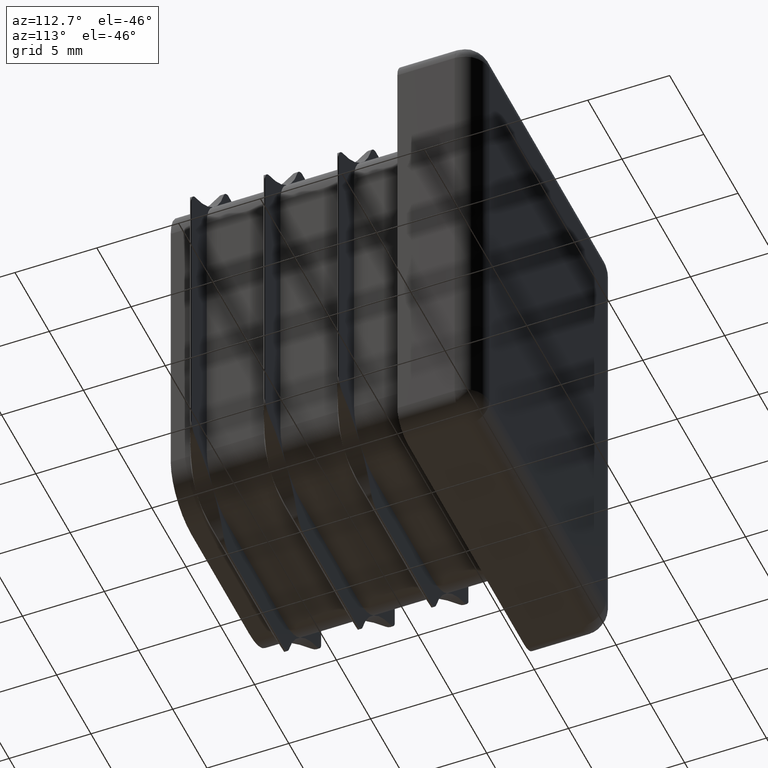
[diagram: clean part render]
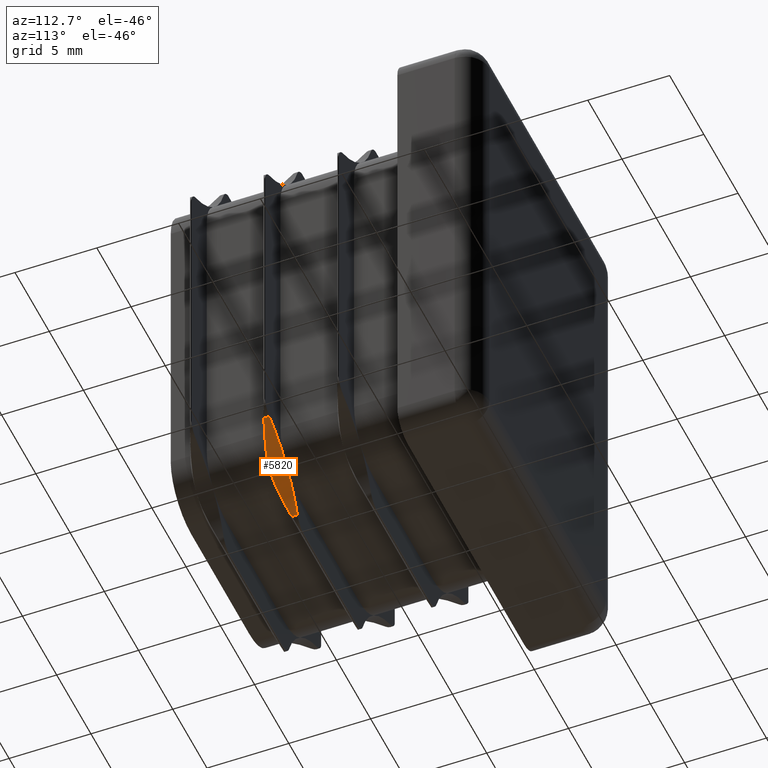
[diagram: same view with one face highlighted and labeled with its STEP entity id]
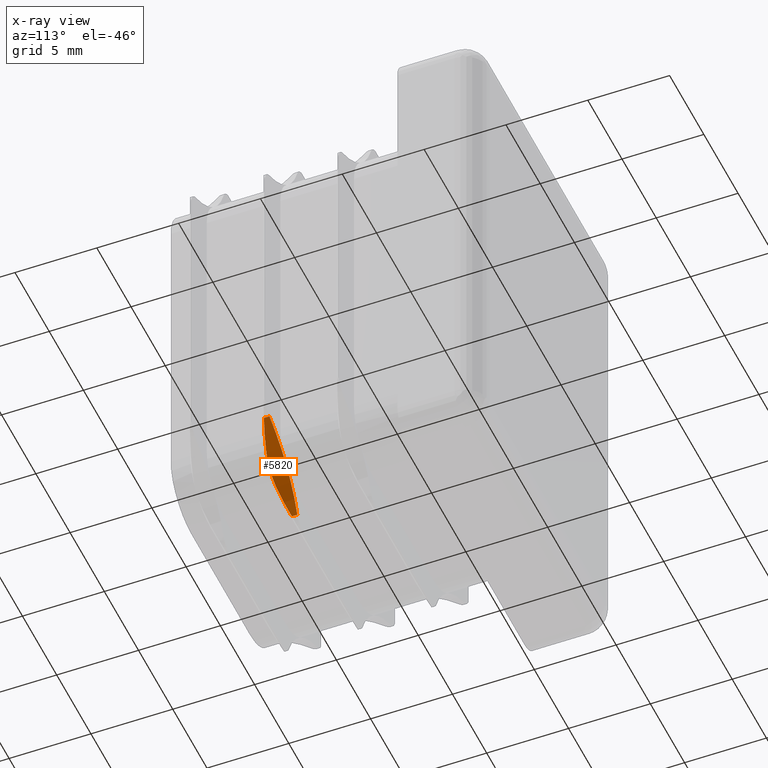
[diagram: x-ray of the same camera — body ghosted, the highlighted face saturated]
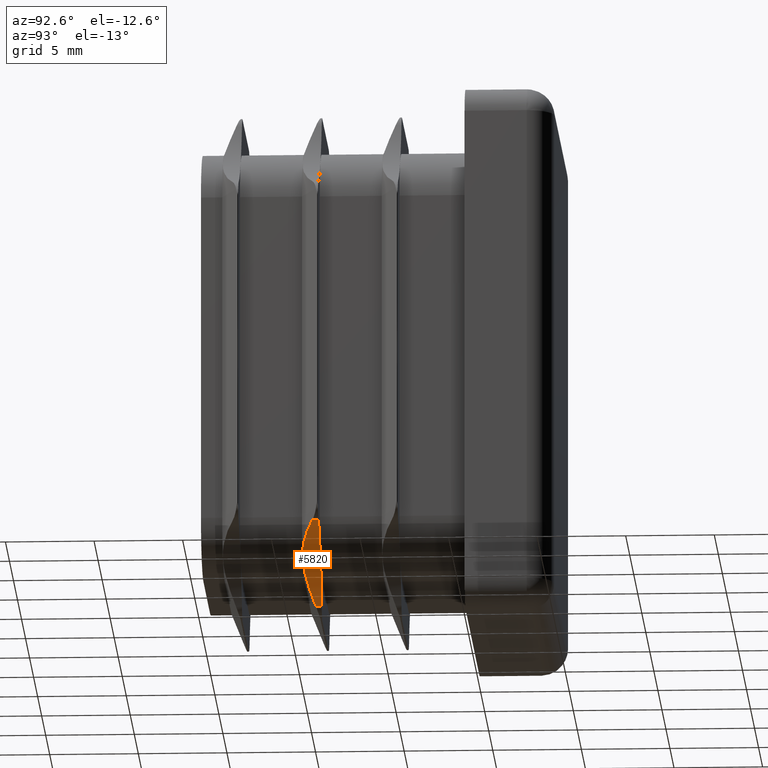
[diagram: same view with one face highlighted and labeled with its STEP entity id]
A machine part, auxiliary view. The second image highlights one B-rep face of the part: STEP entity #5820.
The next image is the same camera in x-ray: the body ghosted, the highlighted face saturated — about 0% of this face is hidden behind the body in this view.
A second angle (auxiliary view) of the same face is appended — the face is thin or edge-on in the first view.
In plain terms, the highlighted cylindrical surface (partial cylindrical patch) has radius 7 mm, axis along (-0, -1, -0).
Its self-contained STEP definition (entity closure, byte-faithful):
#226 = CARTESIAN_POINT ( 'NONE',  ( 7.137321931227677219, -9.208961197122286890, -10.70313595560424247 ) ) ;
#881 = ORIENTED_EDGE ( 'NONE', *, *, #7941, .T. ) ;
#883 = FACE_OUTER_BOUND ( 'NONE', #19012, .T. ) ;
#1069 = EDGE_CURVE ( 'NONE', #11181, #17702, #2359, .T. ) ;
#1802 = VERTEX_POINT ( 'NONE', #5989 ) ;
#1879 = VERTEX_POINT ( 'NONE', #11409 ) ;
#2087 = VECTOR ( 'NONE', #12568, 1000.000000000000000 ) ;
#2359 = B_SPLINE_CURVE_WITH_KNOTS ( 'NONE', 3,
 ( #19790, #10524, #10655, #13635, #9065, #13705, #10587, #2992 ),
 .UNSPECIFIED., .F., .F.,
 ( 4, 2, 2, 4 ),
 ( 2.238089943623103433E-07, 0.001520673063021962161, 0.002280897690035763817, 0.003041122317049565690 ),
 .UNSPECIFIED. ) ;
#2951 = LINE ( 'NONE', #13247, #14222 ) ;
#2992 = CARTESIAN_POINT ( 'NONE',  ( 6.371320343559642829, -9.300000000000016698, -11.37132034355964194 ) ) ;
#3081 = ORIENTED_EDGE ( 'NONE', *, *, #3755, .F. ) ;
#3180 = DIRECTION ( 'NONE',  ( 0.000000000000000000, 0.000000000000000000, -1.000000000000000000 ) ) ;
#3503 = CARTESIAN_POINT ( 'NONE',  ( 8.400585509619967084, -8.810465208568883710, -9.941087427291703804 ) ) ;
#3576 = CARTESIAN_POINT ( 'NONE',  ( 4.770737138387518783, 8.011554318414340514, -13.85263347648326615 ) ) ;
#3755 = EDGE_CURVE ( 'NONE', #1802, #11181, #4000, .T. ) ;
#4000 = LINE ( 'NONE', #3576, #2087 ) ;
#4229 = VERTEX_POINT ( 'NONE', #19589 ) ;
#4290 = DIRECTION ( 'NONE',  ( -0.000000000000000000, -1.000000000000000000, -0.000000000000000000 ) ) ;
#5200 = CARTESIAN_POINT ( 'NONE',  ( 11.32106781186547906, -8.300000000000002487, -16.32106781186547195 ) ) ;
#5278 = CARTESIAN_POINT ( 'NONE',  ( 6.550965035975747419, -9.300000000000014921, -11.19167565114353380 ) ) ;
#5280 = EDGE_CURVE ( 'NONE', #4229, #1802, #12088, .T. ) ;
#5820 = ADVANCED_FACE ( 'NONE', ( #883 ), #19759, .F. ) ;
#5989 = CARTESIAN_POINT ( 'NONE',  ( 4.770737138387518783, -8.300000000000002487, -13.85263347648326615 ) ) ;
#6059 = EDGE_CURVE ( 'NONE', #1879, #4229, #8760, .T. ) ;
#6656 = DIRECTION ( 'NONE',  ( -0.000000000000000000, -1.000000000000000000, -0.000000000000000000 ) ) ;
#7037 = ORIENTED_EDGE ( 'NONE', *, *, #6059, .F. ) ;
#7451 = CARTESIAN_POINT ( 'NONE',  ( 11.32106781186547906, 8.011554318414340514, -16.32106781186547195 ) ) ;
#7941 = EDGE_CURVE ( 'NONE', #1879, #9949, #2951, .T. ) ;
#8052 = DIRECTION ( 'NONE',  ( 0.000000000000000000, 0.000000000000000000, -1.000000000000000000 ) ) ;
#8118 = CARTESIAN_POINT ( 'NONE',  ( 6.740053755725694984, -9.280900505225138986, -11.02208695203986011 ) ) ;
#8131 = DIRECTION ( 'NONE',  ( -0.000000000000000000, -1.000000000000000000, -0.000000000000000000 ) ) ;
#8641 = ORIENTED_EDGE ( 'NONE', *, *, #1069, .F. ) ;
#8760 = CIRCLE ( 'NONE', #15949, 6.999999999999999112 ) ;
#9065 = CARTESIAN_POINT ( 'NONE',  ( 5.699225903546090599, -9.207799718867102357, -12.14252119764960902 ) ) ;
#9304 = CARTESIAN_POINT ( 'NONE',  ( 8.852633476483267927, -8.635322866118645635, -9.770737138387517007 ) ) ;
#9949 = VERTEX_POINT ( 'NONE', #14566 ) ;
#10524 = CARTESIAN_POINT ( 'NONE',  ( 4.941407659551111387, -8.810794449149028651, -13.39973572918983713 ) ) ;
#10587 = CARTESIAN_POINT ( 'NONE',  ( 6.190894576864643284, -9.300000000000018474, -11.55174611025464415 ) ) ;
#10655 = CARTESIAN_POINT ( 'NONE',  ( 5.156745369772171905, -8.971259703439281807, -12.96794967429056200 ) ) ;
#11094 = EDGE_CURVE ( 'NONE', #17702, #9949, #17246, .T. ) ;
#11181 = VERTEX_POINT ( 'NONE', #11372 ) ;
#11323 = DIRECTION ( 'NONE',  ( 0.000000000000000000, 0.000000000000000000, -1.000000000000000000 ) ) ;
#11372 = CARTESIAN_POINT ( 'NONE',  ( 4.770737138387518783, -8.635322866118647411, -13.85263347648326615 ) ) ;
#11409 = CARTESIAN_POINT ( 'NONE',  ( 8.852633476483267927, -8.300000000000002487, -9.770737138387517007 ) ) ;
#12088 = CIRCLE ( 'NONE', #19506, 6.999999999999999112 ) ;
#12443 = AXIS2_PLACEMENT_3D ( 'NONE', #7451, #15573, #3180 ) ;
#12568 = DIRECTION ( 'NONE',  ( -0.000000000000000000, -1.000000000000000000, -0.000000000000000000 ) ) ;
#12658 = CARTESIAN_POINT ( 'NONE',  ( 7.341888641781864955, -9.157030301752660861, -10.55677899811374765 ) ) ;
#13247 = CARTESIAN_POINT ( 'NONE',  ( 8.852633476483267927, 8.011554318414340514, -9.770737138387517007 ) ) ;
#13635 = CARTESIAN_POINT ( 'NONE',  ( 5.554164716619261810, -9.155987635711758443, -12.34571917385939344 ) ) ;
#13705 = CARTESIAN_POINT ( 'NONE',  ( 6.019012735666529501, -9.280480645150721131, -11.74356082462187523 ) ) ;
#14155 = CARTESIAN_POINT ( 'NONE',  ( 7.965556158916290208, -8.972157110577887451, -10.15794270111164010 ) ) ;
#14222 = VECTOR ( 'NONE', #4290, 1000.000000000000000 ) ;
#14566 = CARTESIAN_POINT ( 'NONE',  ( 8.852633476483267927, -8.635322866118645635, -9.770737138387517007 ) ) ;
#14809 = CARTESIAN_POINT ( 'NONE',  ( 6.371320343559642829, -9.300000000000016698, -11.37132034355964194 ) ) ;
#15573 = DIRECTION ( 'NONE',  ( -0.000000000000000000, -1.000000000000000000, -0.000000000000000000 ) ) ;
#15949 = AXIS2_PLACEMENT_3D ( 'NONE', #5200, #6656, #8052 ) ;
#16067 = CARTESIAN_POINT ( 'NONE',  ( 6.371320343559642829, -9.300000000000016698, -11.37132034355964194 ) ) ;
#17246 = B_SPLINE_CURVE_WITH_KNOTS ( 'NONE', 3,
 ( #16067, #5278, #8118, #226, #12658, #14155, #3503, #9304 ),
 .UNSPECIFIED., .F., .F.,
 ( 4, 2, 2, 4 ),
 ( 0.003041122317049565690, 0.003798055884736202103, 0.004554989452422838515, 0.006068856587796111340 ),
 .UNSPECIFIED. ) ;
#17423 = ORIENTED_EDGE ( 'NONE', *, *, #11094, .F. ) ;
#17514 = CARTESIAN_POINT ( 'NONE',  ( 11.32106781186547906, -8.300000000000002487, -16.32106781186547195 ) ) ;
#17633 = ORIENTED_EDGE ( 'NONE', *, *, #5280, .F. ) ;
#17702 = VERTEX_POINT ( 'NONE', #14809 ) ;
#19012 = EDGE_LOOP ( 'NONE', ( #3081, #17633, #7037, #881, #17423, #8641 ) ) ;
#19506 = AXIS2_PLACEMENT_3D ( 'NONE', #17514, #8131, #11323 ) ;
#19589 = CARTESIAN_POINT ( 'NONE',  ( 6.371320343559676580, -8.300000000000000711, -11.37132034355967569 ) ) ;
#19759 = CYLINDRICAL_SURFACE ( 'NONE', #12443, 6.999999999999999112 ) ;
#19790 = CARTESIAN_POINT ( 'NONE',  ( 4.770737138387518783, -8.635322866118647411, -13.85263347648326615 ) ) ;